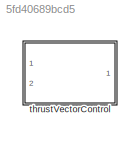
MODEL slx_5fd40689bcd5
KIND library
CONFIG AbsTol = auto
CONFIG EnableMultiTasking = off
CONFIG FixedStep = auto
CONFIG MaxStep = auto
CONFIG MinStep = auto
CONFIG RelTol = 1e-3
CONFIG SampleTimeConstraint = Unconstrained
CONFIG Solver = VariableStepAuto
CONFIG SolverName = VariableStepAuto
CONFIG StartTime = 0.0
CONFIG StopTime = 10.0
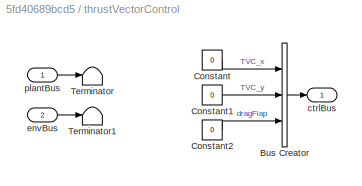
BLOCK [SubSystem] thrustVectorControl
  Ports = [2, 1]
  RequestExecContextInheritance = off
BLOCK [BusCreator] thrustVectorControl/Bus Creator
  DisplayOption = bar
  InheritFromInputs = on
  Inputs = 3
  Ports = [3, 1]
BLOCK [Constant] thrustVectorControl/Constant
  Value = 0
BLOCK [Constant] thrustVectorControl/Constant1
  Value = 0
BLOCK [Constant] thrustVectorControl/Constant2
  Value = 0
BLOCK [Terminator] thrustVectorControl/Terminator
BLOCK [Terminator] thrustVectorControl/Terminator1
BLOCK [Outport] thrustVectorControl/ctrlBus
  VectorParamsAs1DForOutWhenUnconnected = off
BLOCK [Inport] thrustVectorControl/envBus
  Port = 2
BLOCK [Inport] thrustVectorControl/plantBus
LINE thrustVectorControl/Bus Creator:1 -> thrustVectorControl/ctrlBus:1
LINE thrustVectorControl/Constant1:1 -> thrustVectorControl/Bus Creator:2
LINE thrustVectorControl/Constant2:1 -> thrustVectorControl/Bus Creator:3
LINE thrustVectorControl/Constant:1 -> thrustVectorControl/Bus Creator:1
LINE thrustVectorControl/envBus:1 -> thrustVectorControl/Terminator1:1
LINE thrustVectorControl/plantBus:1 -> thrustVectorControl/Terminator:1
